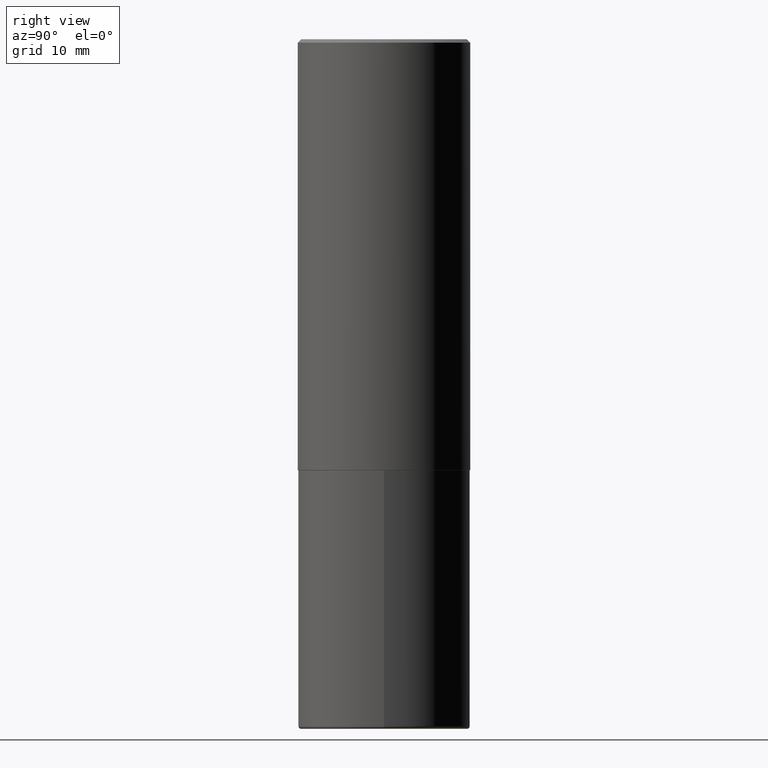
[diagram: clean part render]
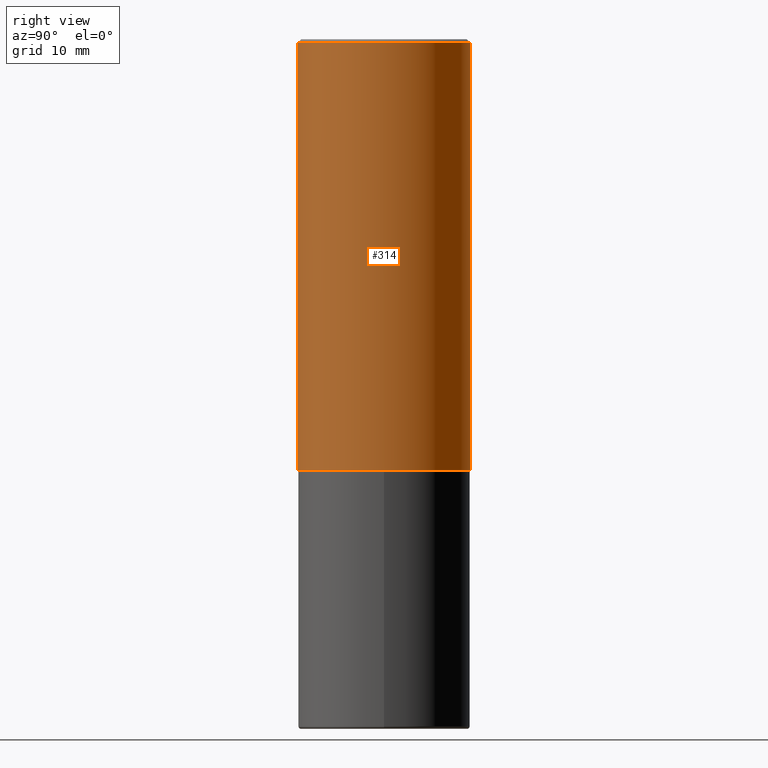
[diagram: same view with one face highlighted and labeled with its STEP entity id]
A machine part, right view. The second image highlights one B-rep face of the part: STEP entity #314.
In plain terms, the highlighted cylindrical surface (partial cylindrical patch) has radius 12.7 mm, axis along (-0, 0, 1).
Its self-contained STEP definition (entity closure, byte-faithful):
#9 = LINE ( 'NONE', #397, #297 ) ;
#14 = VERTEX_POINT ( 'NONE', #365 ) ;
#17 = LINE ( 'NONE', #412, #279 ) ;
#19 = EDGE_CURVE ( 'NONE', #148, #14, #410, .T. ) ;
#35 = ORIENTED_EDGE ( 'NONE', *, *, #268, .T. ) ;
#37 = ORIENTED_EDGE ( 'NONE', *, *, #336, .T. ) ;
#46 = CARTESIAN_POINT ( 'NONE',  ( -3.491481338843073796E-15, -0.5000000000000089928, -2.498999999999998778 ) ) ;
#78 = DIRECTION ( 'NONE',  ( -6.982962677686265922E-15, -1.000000000000000000, 3.492918657822378473E-15 ) ) ;
#81 = ORIENTED_EDGE ( 'NONE', *, *, #377, .F. ) ;
#84 = AXIS2_PLACEMENT_3D ( 'NONE', #263, #361, #78 ) ;
#94 = AXIS2_PLACEMENT_3D ( 'NONE', #111, #233, #347 ) ;
#111 = CARTESIAN_POINT ( 'NONE',  ( 4.888930263412717169E-31, -6.985837315644793974E-17, -0.02000000000000010797 ) ) ;
#114 = DIRECTION ( 'NONE',  ( -2.444465131706345255E-29, 3.492918657822378473E-15, 1.000000000000000000 ) ) ;
#133 = EDGE_LOOP ( 'NONE', ( #35, #37, #405, #81 ) ) ;
#139 = CYLINDRICAL_SURFACE ( 'NONE', #84, 0.5000000000000001110 ) ;
#148 = VERTEX_POINT ( 'NONE', #379 ) ;
#204 = CARTESIAN_POINT ( 'NONE',  ( 3.552713678800533273E-15, 0.4999999999999916178, -2.499000000000001886 ) ) ;
#225 = FACE_OUTER_BOUND ( 'NONE', #133, .T. ) ;
#230 = DIRECTION ( 'NONE',  ( -2.444465131706345255E-29, 3.492918657822378868E-15, 1.000000000000000000 ) ) ;
#233 = DIRECTION ( 'NONE',  ( -2.444465131706345255E-29, 3.492918657822378473E-15, 1.000000000000000000 ) ) ;
#248 = CIRCLE ( 'NONE', #357, 0.5000000000000002220 ) ;
#256 = VERTEX_POINT ( 'NONE', #204 ) ;
#263 = CARTESIAN_POINT ( 'NONE',  ( 0.000000000000000000, 0.000000000000000000, 0.000000000000000000 ) ) ;
#268 = EDGE_CURVE ( 'NONE', #326, #256, #248, .T. ) ;
#279 = VECTOR ( 'NONE', #346, 39.37007874015748143 ) ;
#297 = VECTOR ( 'NONE', #230, 39.37007874015748143 ) ;
#304 = CARTESIAN_POINT ( 'NONE',  ( 6.108718364134157248E-29, -8.728803725898125516E-15, -2.499000000000000110 ) ) ;
#314 = ADVANCED_FACE ( 'NONE', ( #225 ), #139, .T. ) ;
#325 = DIRECTION ( 'NONE',  ( -6.982962677686266711E-15, -1.000000000000000000, 3.278217592397114284E-15 ) ) ;
#326 = VERTEX_POINT ( 'NONE', #46 ) ;
#336 = EDGE_CURVE ( 'NONE', #256, #14, #9, .T. ) ;
#346 = DIRECTION ( 'NONE',  ( -2.444465131706345255E-29, 3.492918657822378868E-15, 1.000000000000000000 ) ) ;
#347 = DIRECTION ( 'NONE',  ( -6.982962677686265922E-15, -1.000000000000000000, 3.491643216902136408E-15 ) ) ;
#357 = AXIS2_PLACEMENT_3D ( 'NONE', #304, #114, #325 ) ;
#361 = DIRECTION ( 'NONE',  ( -2.444465131706345255E-29, 3.492918657822378473E-15, 1.000000000000000000 ) ) ;
#365 = CARTESIAN_POINT ( 'NONE',  ( 3.491481338843133355E-15, 0.4999999999999999445, -0.02000000000000185310 ) ) ;
#377 = EDGE_CURVE ( 'NONE', #326, #148, #17, .T. ) ;
#379 = CARTESIAN_POINT ( 'NONE',  ( -3.430248998885764992E-15, -0.5000000000000001110, -0.01999999999999835937 ) ) ;
#397 = CARTESIAN_POINT ( 'NONE',  ( 3.552713678800501718E-15, 0.5000000000000001110, -1.746459328911189631E-15 ) ) ;
#405 = ORIENTED_EDGE ( 'NONE', *, *, #19, .F. ) ;
#410 = CIRCLE ( 'NONE', #94, 0.5000000000000000000 ) ;
#412 = CARTESIAN_POINT ( 'NONE',  ( -3.491481338843133750E-15, -0.5000000000000001110, 1.746459328911189631E-15 ) ) ;